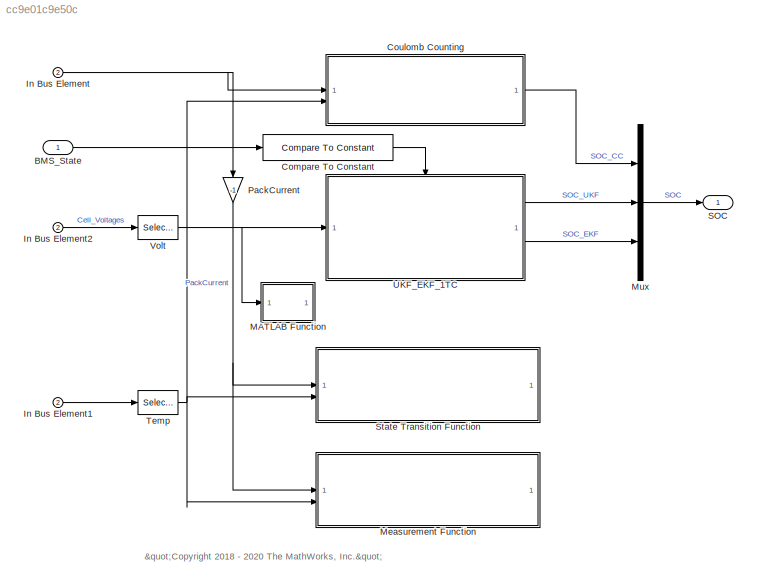
MODEL slx_cc9e01c9e50c
KIND model
BLOCK [Inport] BMS_State
  OutDataTypeStr = Enum: BMS_State_Enum
BLOCK [Reference] Compare To Constant  REF=simulink/Logic and Bit
Operations/Compare
To Constant
  SourceBlock = simulink/Logic and Bit\nOperations/Compare\nTo Constant
  SourceType = Compare To Constant
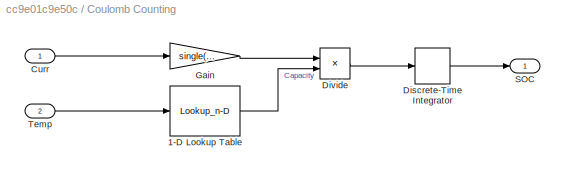
BLOCK [SubSystem] Coulomb Counting
  VariantControl = SocAlgo==1
BLOCK [Lookup_n-D] Coulomb Counting/1-D Lookup Table
  BreakpointsForDimension1 = single(Battery(1).Temperature_LUT)
  InputPortMap = u0
  InternalRulePriority = Speed
  NumberOfTableDimensions = 1
  RndMeth = Simplest
  Table = single(Battery(1).Capacity_LUT)
BLOCK [Inport] Coulomb Counting/Curr
BLOCK [DiscreteIntegrator] Coulomb Counting/Discrete-Time Integrator
  ICPrevOutput = DiscIntNeverNeededParam
  ICPrevScaledInput = DiscIntNeverNeededParam
  InitialCondition = single(SOCInit+0.05)
  InitialConditionSetting = Auto
  LimitOutput = on
  LowerSaturationLimit = 0
  SampleTime = -1
  UpperSaturationLimit = 1
BLOCK [Product] Coulomb Counting/Divide
  Inputs = */
  NameLocation = top
BLOCK [Gain] Coulomb Counting/Gain
  Gain = single(1/3600)
BLOCK [Outport] Coulomb Counting/SOC
  VectorParamsAs1DForOutWhenUnconnected = off
BLOCK [Inport] Coulomb Counting/Temp
  Port = 2
BLOCK [Inport] In Bus Element
  Port = 2
BLOCK [Inport] In Bus Element1
  Port = 2
BLOCK [Inport] In Bus Element2
  Port = 2
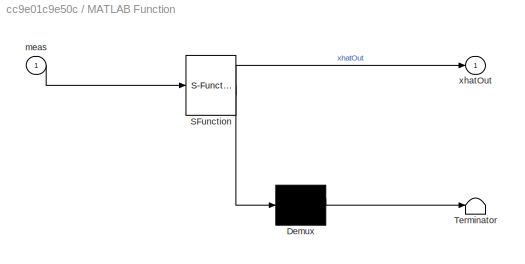
BLOCK [SubSystem] MATLAB Function
  Commented = on
  ErrorFcn = Stateflow.Translate.translate
  PermitHierarchicalResolution = ExplicitOnly
  SFBlockType = MATLAB Function
  TreatAsAtomicUnit = on
BLOCK [Demux] MATLAB Function/ Demux 
  Outputs = 1
BLOCK [S-Function] MATLAB Function/ SFunction 
  EnableBusSupport = off
  FunctionName = sf_sfun
  PortCounts = [1 2]
  SFcnIsStateOwnerBlock = off
  SFunctionDeploymentMode = off
  Tag = Stateflow S-Function 2
BLOCK [Terminator] MATLAB Function/ Terminator 
BLOCK [Inport] MATLAB Function/meas
BLOCK [Outport] MATLAB Function/xhatOut
  VectorParamsAs1DForOutWhenUnconnected = off
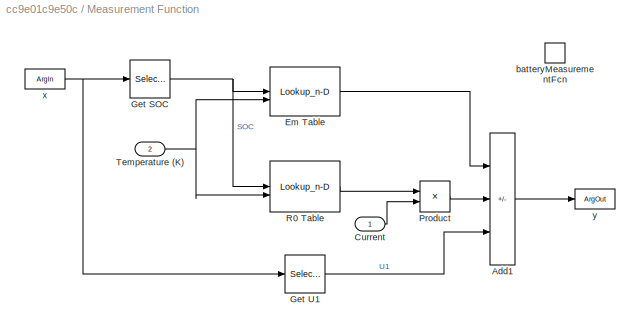
BLOCK [SubSystem] Measurement Function
  TreatAsAtomicUnit = on
BLOCK [Sum] Measurement Function/Add1
  IconShape = rectangular
  Inputs = +--
BLOCK [Inport] Measurement Function/Current
BLOCK [Lookup_n-D] Measurement Function/Em Table
  BeginIndexSearchUsingPreviousIndexResult = on
  BreakpointsForDimension1 = Battery.SOC_LUT
  BreakpointsForDimension2 = Battery.Temperature_LUT
  ExtrapMethod = Clip
  InputPortMap = u0,u1
  InternalRulePriority = Speed
  RndMeth = Simplest
  Table = Battery.Em_LUT
BLOCK [Selector] Measurement Function/Get SOC
  IndexOptions = Index vector (dialog)
  Indices = [1]
  InputPortWidth = 2
  OutputSizes = 1
BLOCK [Selector] Measurement Function/Get U1
  IndexOptions = Index vector (dialog)
  Indices = 2
  InputPortWidth = 2
  OutputSizes = 1
BLOCK [Product] Measurement Function/Product
BLOCK [Lookup_n-D] Measurement Function/R0 Table
  BeginIndexSearchUsingPreviousIndexResult = on
  BreakpointsForDimension1 = Battery.SOC_LUT
  BreakpointsForDimension2 = Battery.Temperature_LUT
  ExtrapMethod = Clip
  InputPortMap = u0,u1
  InternalRulePriority = Speed
  RndMeth = Simplest
  Table = Battery.R0_LUT
BLOCK [Inport] Measurement Function/Temperature (K)
  Port = 2
BLOCK [TriggerPort] Measurement Function/batteryMeasurementFcn
  FunctionName = batteryMeasurementFcn
  IsSimulinkFunction = on
  StatesWhenEnabling = held
  TriggerType = function-call
  VariantControl = Variant
BLOCK [ArgIn] Measurement Function/x
  ArgumentName = x
  DisableCoverage = on
  OutDataTypeStr = single
  PortDimensions = 2
BLOCK [ArgOut] Measurement Function/y
  ArgumentName = y
  DisableCoverage = on
  OutDataTypeStr = single
BLOCK [Mux] Mux
  DisplayOption = bar
  Inputs = 3
BLOCK [Gain] PackCurrent
  Gain = -1
  NameLocation = left
BLOCK [Outport] SOC
  OutDataTypeStr = single
  SampleTime = [0.10000000000000001,0]
  SamplingMode = Sample based
  SignalType = real
  VectorParamsAs1DForOutWhenUnconnected = off
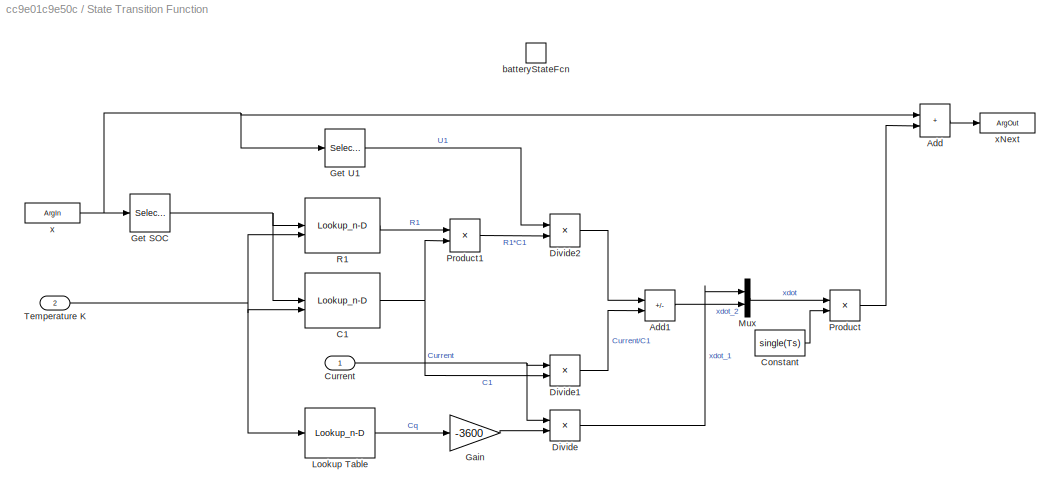
BLOCK [SubSystem] State Transition Function
  TreatAsAtomicUnit = on
BLOCK [Sum] State Transition Function/Add
  IconShape = rectangular
BLOCK [Sum] State Transition Function/Add1
  IconShape = rectangular
  Inputs = -+
BLOCK [Lookup_n-D] State Transition Function/C1
  BeginIndexSearchUsingPreviousIndexResult = on
  BreakpointsForDimension1 = Battery.SOC_LUT
  BreakpointsForDimension2 = Battery.Temperature_LUT
  ExtrapMethod = Clip
  InputPortMap = u0,u1
  InternalRulePriority = Speed
  RndMeth = Simplest
  Table = Battery.C1_LUT
BLOCK [Constant] State Transition Function/Constant
  OutDataTypeStr = single
  Value = single(Ts)
BLOCK [Inport] State Transition Function/Current
BLOCK [Product] State Transition Function/Divide
  Inputs = */
BLOCK [Product] State Transition Function/Divide1
  Inputs = */
BLOCK [Product] State Transition Function/Divide2
  Inputs = */
BLOCK [Gain] State Transition Function/Gain
  Gain = -3600
BLOCK [Selector] State Transition Function/Get SOC
  IndexOptions = Index vector (dialog)
  Indices = 1
  InputPortWidth = 2
  OutputSizes = 1
BLOCK [Selector] State Transition Function/Get U1
  IndexOptions = Index vector (dialog)
  Indices = 2
  InputPortWidth = 2
  OutputSizes = 1
BLOCK [Lookup_n-D] State Transition Function/Lookup Table
  BeginIndexSearchUsingPreviousIndexResult = on
  BreakpointsForDimension1 = Battery.Temperature_LUT
  InputPortMap = u0
  InternalRulePriority = Speed
  NumberOfTableDimensions = 1
  RndMeth = Simplest
  Table = Battery.Capacity_LUT
BLOCK [Mux] State Transition Function/Mux
  DisplayOption = bar
  Inputs = 2
BLOCK [Product] State Transition Function/Product
  OutDataTypeStr = single
BLOCK [Product] State Transition Function/Product1
BLOCK [Lookup_n-D] State Transition Function/R1
  BeginIndexSearchUsingPreviousIndexResult = on
  BreakpointsForDimension1 = Battery.SOC_LUT
  BreakpointsForDimension2 = Battery.Temperature_LUT
  ExtrapMethod = Clip
  InputPortMap = u0,u1
  InternalRulePriority = Speed
  RndMeth = Simplest
  Table = Battery.R1_LUT
BLOCK [Inport] State Transition Function/Temperature K
  Port = 2
BLOCK [TriggerPort] State Transition Function/batteryStateFcn
  FunctionName = batteryStateFcn
  IsSimulinkFunction = on
  StatesWhenEnabling = held
  TriggerType = function-call
  VariantControl = Variant
BLOCK [ArgIn] State Transition Function/x
  ArgumentName = x
  DisableCoverage = on
  OutDataTypeStr = single
  PortDimensions = 2
BLOCK [ArgOut] State Transition Function/xNext
  ArgumentName = xNext
  DisableCoverage = on
  OutDataTypeStr = single
  PortDimensions = 2
BLOCK [Selector] Temp
  IndexOptions = Index vector (dialog)
  Indices = 1
  InputPortWidth = Ns_Module*NumModules
  OutputSizes = 1
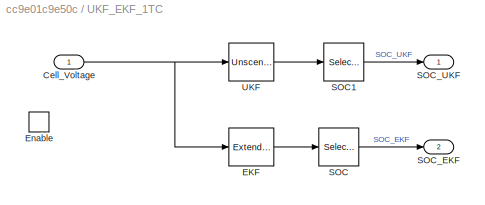
BLOCK [SubSystem] UKF_EKF_1TC
  VariantControl = CellType==1
BLOCK [Inport] UKF_EKF_1TC/Cell_Voltage
BLOCK [Reference] UKF_EKF_1TC/EKF  REF=sharedTrackingLibrary/Extended Kalman Filter
  SourceBlock = sharedTrackingLibrary/Extended Kalman Filter
  SourceType = Extended Kalman Filter
BLOCK [EnablePort] UKF_EKF_1TC/Enable
BLOCK [Selector] UKF_EKF_1TC/SOC
  IndexOptions = Index vector (dialog)
  Indices = 1
  InputPortWidth = 2
  OutputSizes = 1
BLOCK [Selector] UKF_EKF_1TC/SOC1
  IndexOptions = Index vector (dialog)
  Indices = 1
  InputPortWidth = 2
  OutputSizes = 1
BLOCK [Outport] UKF_EKF_1TC/SOC_EKF
  Port = 2
  VectorParamsAs1DForOutWhenUnconnected = off
BLOCK [Outport] UKF_EKF_1TC/SOC_UKF
  VectorParamsAs1DForOutWhenUnconnected = off
BLOCK [Reference] UKF_EKF_1TC/UKF  REF=sharedTrackingLibrary/Unscented Kalman Filter
  SourceBlock = sharedTrackingLibrary/Unscented Kalman Filter
  SourceType = Unscented Kalman Filter
BLOCK [Selector] Volt
  IndexOptions = Index vector (dialog)
  Indices = 1
  InputPortWidth = Ns_Module*NumModules
  OutputSizes = 1
ANNOTATION (root): "<copyright redacted>
LINE BMS_State:1 -> Compare To Constant:1
LINE Compare To Constant:1 -> UKF_EKF_1TC:enable
LINE Coulomb Counting/1-D Lookup Table:1 -> Coulomb Counting/Divide:2
LINE Coulomb Counting/Curr:1 -> Coulomb Counting/Gain:1
LINE Coulomb Counting/Discrete-Time Integrator:1 -> Coulomb Counting/SOC:1
LINE Coulomb Counting/Divide:1 -> Coulomb Counting/Discrete-Time Integrator:1
LINE Coulomb Counting/Gain:1 -> Coulomb Counting/Divide:1
LINE Coulomb Counting/Temp:1 -> Coulomb Counting/1-D Lookup Table:1
LINE Coulomb Counting:1 -> Mux:1
LINE In Bus Element1:1 -> Temp:1
LINE In Bus Element2:1 -> Volt:1
NET In Bus Element:1 -> Coulomb Counting:1, PackCurrent:1
LINE Measurement Function/Add1:1 -> Measurement Function/y:1
LINE Measurement Function/Current:1 -> Measurement Function/Product:2
LINE Measurement Function/Em Table:1 -> Measurement Function/Add1:1
NET Measurement Function/Get SOC:1 -> Measurement Function/Em Table:1, Measurement Function/R0 Table:1
LINE Measurement Function/Get U1:1 -> Measurement Function/Add1:3
LINE Measurement Function/Product:1 -> Measurement Function/Add1:2
LINE Measurement Function/R0 Table:1 -> Measurement Function/Product:1
NET Measurement Function/Temperature (K):1 -> Measurement Function/Em Table:2, Measurement Function/R0 Table:2
NET Measurement Function/x:1 -> Measurement Function/Get SOC:1, Measurement Function/Get U1:1
LINE Mux:1 -> SOC:1
NET PackCurrent:1 -> Measurement Function:1, State Transition Function:1
LINE State Transition Function/Add1:1 -> State Transition Function/Mux:2
LINE State Transition Function/Add:1 -> State Transition Function/xNext:1
NET State Transition Function/C1:1 -> State Transition Function/Divide1:2, State Transition Function/Product1:2
LINE State Transition Function/Constant:1 -> State Transition Function/Product:2
NET State Transition Function/Current:1 -> State Transition Function/Divide1:1, State Transition Function/Divide:1
LINE State Transition Function/Divide1:1 -> State Transition Function/Add1:2
LINE State Transition Function/Divide2:1 -> State Transition Function/Add1:1
LINE State Transition Function/Divide:1 -> State Transition Function/Mux:1
LINE State Transition Function/Gain:1 -> State Transition Function/Divide:2
NET State Transition Function/Get SOC:1 -> State Transition Function/C1:1, State Transition Function/R1:1
LINE State Transition Function/Get U1:1 -> State Transition Function/Divide2:1
LINE State Transition Function/Lookup Table:1 -> State Transition Function/Gain:1
LINE State Transition Function/Mux:1 -> State Transition Function/Product:1
LINE State Transition Function/Product1:1 -> State Transition Function/Divide2:2
LINE State Transition Function/Product:1 -> State Transition Function/Add:2
LINE State Transition Function/R1:1 -> State Transition Function/Product1:1
NET State Transition Function/Temperature K:1 -> State Transition Function/C1:2, State Transition Function/Lookup Table:1, State Transition Function/R1:2
NET State Transition Function/x:1 -> State Transition Function/Add:1, State Transition Function/Get SOC:1, State Transition Function/Get U1:1
NET Temp:1 -> Coulomb Counting:2, Measurement Function:2, State Transition Function:2
NET UKF_EKF_1TC/Cell_Voltage:1 -> UKF_EKF_1TC/EKF:1, UKF_EKF_1TC/UKF:1
LINE UKF_EKF_1TC/EKF:1 -> UKF_EKF_1TC/SOC:1
LINE UKF_EKF_1TC/SOC1:1 -> UKF_EKF_1TC/SOC_UKF:1
LINE UKF_EKF_1TC/SOC:1 -> UKF_EKF_1TC/SOC_EKF:1
LINE UKF_EKF_1TC/UKF:1 -> UKF_EKF_1TC/SOC1:1
LINE UKF_EKF_1TC:1 -> Mux:2
LINE UKF_EKF_1TC:2 -> Mux:3
NET Volt:1 -> MATLAB Function:1, UKF_EKF_1TC:1
note: NET lines group one-source signal fan-out (src -> all destinations, sorted); 1:1 wires keep LINE
CHART MATLAB Function states=1 transitions=1
  STATE_LABEL 'eML_blk_kernel()'
  STATE_LABEL 'SCRIPT:\nfunction xhatOut  = EXTKALMAN(meas)\n%EXTKALMAN Radar Data Processing Tracker Using an Extended Kalman Filter\n%\n%  This program is executed as a MATLAB function block in the \n%  sldemo_radar Simulink model.  The estimated and actual positions are \n%  saved to the workspace and are plotted at the end of the simulation by \n%  the program aero_radplot (called from the simulation automatically)...<+1005ch>'
CHART  states=0 transitions=0
